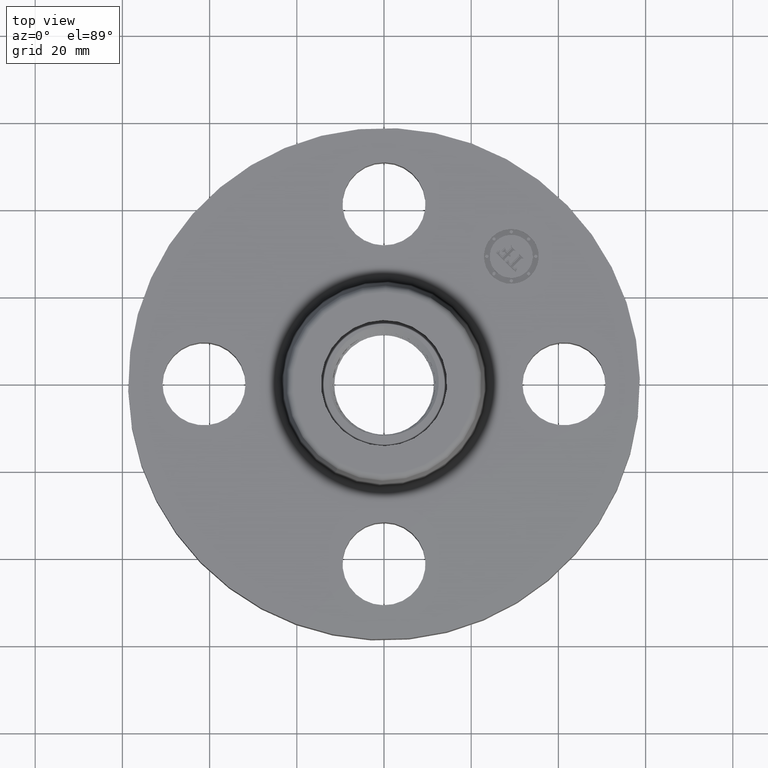
[diagram: clean part render]
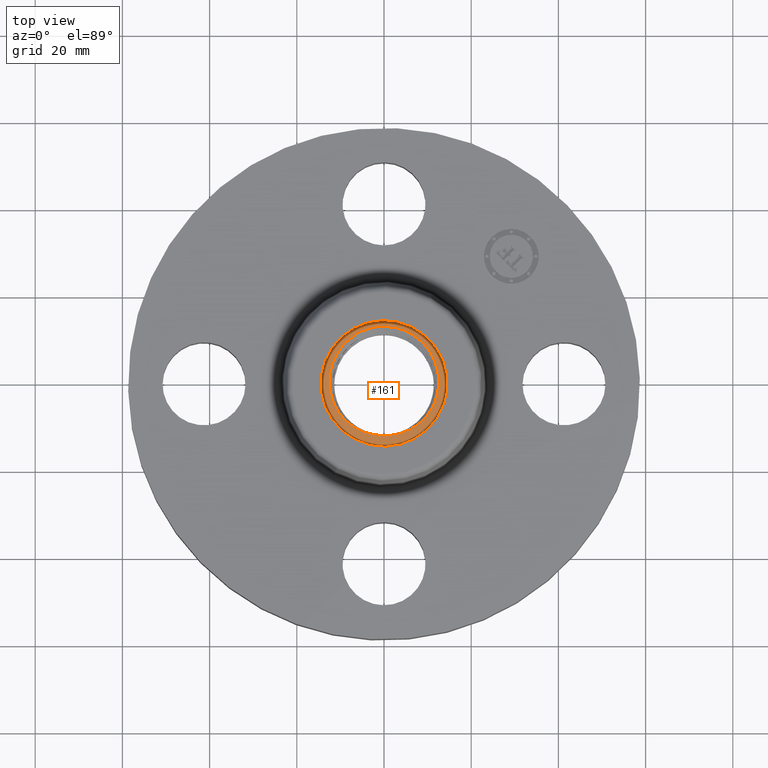
[diagram: same view with one face highlighted and labeled with its STEP entity id]
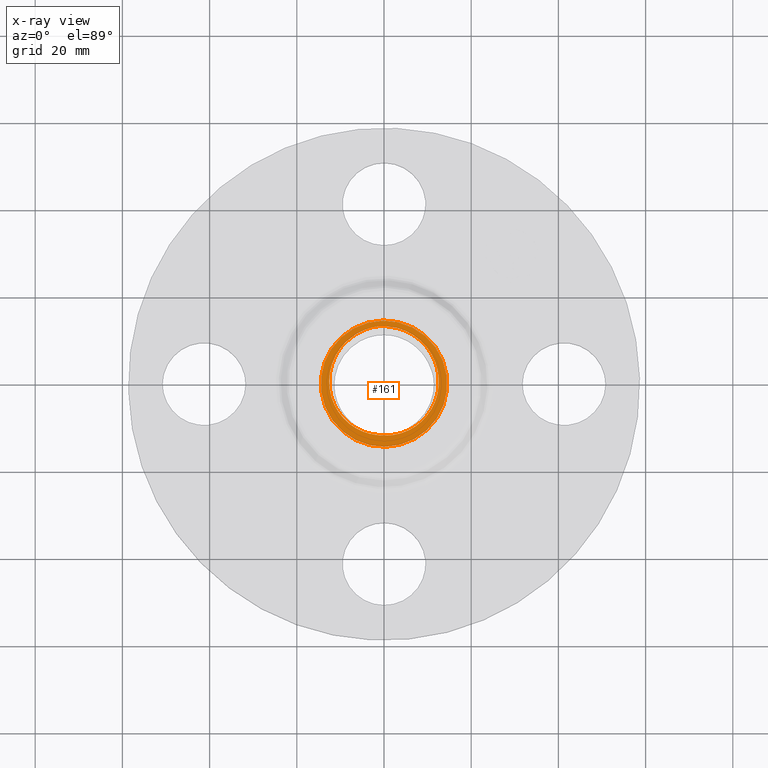
[diagram: x-ray of the same camera — body ghosted, the highlighted face saturated]
A machine part, top view. The second image highlights one B-rep face of the part: STEP entity #161.
The next image is the same camera in x-ray: the body ghosted, the highlighted face saturated — about 0% of this face is hidden behind the body in this view.
In plain terms, the highlighted planar face has unit normal (0, 0, 1).
Its self-contained STEP definition (entity closure, byte-faithful):
#38=AXIS2_PLACEMENT_3D('Plane Axis2P3D',#35,#36,#37) ;
#42=AXIS2_PLACEMENT_3D('Circle Axis2P3D',#40,#41,$) ;
#51=AXIS2_PLACEMENT_3D('Circle Axis2P3D',#49,#50,$) ;
#60=AXIS2_PLACEMENT_3D('Circle Axis2P3D',#58,#59,$) ;
#35=CARTESIAN_POINT('Axis2P3D Location',(1.92322098754E-017,-2.08057543197E-016,0.620000000002)) ;
#40=CARTESIAN_POINT('Axis2P3D Location',(0.,0.,0.620000000002)) ;
#44=CARTESIAN_POINT('Vertex',(-0.273272557005,0.50022206028,0.620000000002)) ;
#46=CARTESIAN_POINT('Vertex',(0.273272557005,-0.50022206028,0.620000000002)) ;
#49=CARTESIAN_POINT('Axis2P3D Location',(0.,0.,0.620000000002)) ;
#58=CARTESIAN_POINT('Axis2P3D Location',(1.92322098754E-017,1.92322098754E-017,0.620000000002)) ;
#62=CARTESIAN_POINT('Vertex',(-0.0688399554037,-0.462087093387,0.620000369459)) ;
#64=CARTESIAN_POINT('Vertex',(-0.000898155746527,-0.467185819808,0.619999533057)) ;
#68=CARTESIAN_POINT('Control Point',(-0.246874648732,0.451904577731,0.620000000002)) ;
#69=CARTESIAN_POINT('Control Point',(-0.286886767345,0.428073839848,0.620000000002)) ;
#70=CARTESIAN_POINT('Control Point',(-0.324120655207,0.399765657591,0.620000000002)) ;
#71=CARTESIAN_POINT('Control Point',(-0.357892663513,0.367403255664,0.620000000002)) ;
#72=CARTESIAN_POINT('Control Point',(-0.417367407322,0.295716882227,0.620000000002)) ;
#73=CARTESIAN_POINT('Control Point',(-0.458982025395,0.212846321883,0.620000000002)) ;
#74=CARTESIAN_POINT('Control Point',(-0.47490507491,0.169278463983,0.620000000002)) ;
#75=CARTESIAN_POINT('Control Point',(-0.494276151142,0.0884506146587,0.620000000002)) ;
#76=CARTESIAN_POINT('Control Point',(-0.496660780172,0.00587605778858,0.620000000002)) ;
#77=CARTESIAN_POINT('Control Point',(-0.494322375469,-0.0307556926294,0.620000000002)) ;
#78=CARTESIAN_POINT('Control Point',(-0.481489083588,-0.112076150774,0.620000000002)) ;
#79=CARTESIAN_POINT('Control Point',(-0.452185521533,-0.188866355639,0.620000000002)) ;
#80=CARTESIAN_POINT('Control Point',(-0.431040425404,-0.229332544678,0.620000000002)) ;
#81=CARTESIAN_POINT('Control Point',(-0.379827310801,-0.304424622314,0.620000000002)) ;
#82=CARTESIAN_POINT('Control Point',(-0.313003531468,-0.36536066358,0.620000000002)) ;
#83=CARTESIAN_POINT('Control Point',(-0.27622328463,-0.39169519428,0.620000000002)) ;
#84=CARTESIAN_POINT('Control Point',(-0.213555465979,-0.426195274949,0.620000000002)) ;
#85=CARTESIAN_POINT('Control Point',(-0.14613285147,-0.448271854112,0.620000000002)) ;
#86=CARTESIAN_POINT('Control Point',(-0.120639769476,-0.454688686443,0.620000000002)) ;
#87=CARTESIAN_POINT('Control Point',(-0.0948185026009,-0.459298429926,0.620000000002)) ;
#88=CARTESIAN_POINT('Control Point',(-0.0688398611782,-0.462086550419,0.620000000002)) ;
#89=CARTESIAN_POINT('Vertex',(-0.246874648732,0.451904577731,0.620000000002)) ;
#93=CARTESIAN_POINT('Control Point',(-0.0410005323526,0.521404259615,0.620000000002)) ;
#94=CARTESIAN_POINT('Control Point',(-0.084654212127,0.516358284317,0.620000000002)) ;
#95=CARTESIAN_POINT('Control Point',(-0.127698108692,0.506733078077,0.620000000002)) ;
#96=CARTESIAN_POINT('Control Point',(-0.169496926035,0.492611963322,0.620000000002)) ;
#97=CARTESIAN_POINT('Control Point',(-0.209404094776,0.474221590148,0.620000000002)) ;
#98=CARTESIAN_POINT('Control Point',(-0.246874648732,0.451904577731,0.620000000002)) ;
#99=CARTESIAN_POINT('Vertex',(-0.0410005323527,0.521404259615,0.620000000002)) ;
#103=CARTESIAN_POINT('Control Point',(-0.0410005323527,0.521404259615,0.620000000002)) ;
#104=CARTESIAN_POINT('Control Point',(-0.0328023643171,0.521776412308,0.620000000002)) ;
#105=CARTESIAN_POINT('Control Point',(-0.0245994034175,0.52198754736,0.620000000002)) ;
#106=CARTESIAN_POINT('Control Point',(-0.0163903047175,0.522037517069,0.620000000002)) ;
#107=CARTESIAN_POINT('Control Point',(-0.0081903946225,0.521926288257,0.620000000002)) ;
#108=CARTESIAN_POINT('Control Point',(1.69015948654E-006,0.521654154517,0.620000000002)) ;
#109=CARTESIAN_POINT('Vertex',(1.69015948651E-006,0.521654154517,0.620000000002)) ;
#113=CARTESIAN_POINT('Control Point',(1.69015948663E-006,0.521654154517,0.620000000002)) ;
#114=CARTESIAN_POINT('Control Point',(0.0468492643059,0.520097920058,0.620000000002)) ;
#115=CARTESIAN_POINT('Control Point',(0.0934409487528,0.513279597337,0.620000000002)) ;
#116=CARTESIAN_POINT('Control Point',(0.138979567143,0.501235788448,0.620000000002)) ;
#117=CARTESIAN_POINT('Control Point',(0.226384867942,0.467142182791,0.620000000002)) ;
#118=CARTESIAN_POINT('Control Point',(0.303661737705,0.414564697999,0.620000000002)) ;
#119=CARTESIAN_POINT('Control Point',(0.339076607765,0.384031921659,0.620000000002)) ;
#120=CARTESIAN_POINT('Control Point',(0.402203711557,0.31559074832,0.620000000002)) ;
#121=CARTESIAN_POINT('Control Point',(0.448124592946,0.234963263188,0.620000000002)) ;
#122=CARTESIAN_POINT('Control Point',(0.466316103117,0.192262738497,0.620000000002)) ;
#123=CARTESIAN_POINT('Control Point',(0.492522393644,0.103625938095,0.620000000002)) ;
#124=CARTESIAN_POINT('Control Point',(0.497890259074,0.0117178835026,0.620000000002)) ;
#125=CARTESIAN_POINT('Control Point',(0.49523854238,-0.0342394954873,0.620000000002)) ;
#126=CARTESIAN_POINT('Control Point',(0.479396383889,-0.12452384699,0.620000000002)) ;
#127=CARTESIAN_POINT('Control Point',(0.443463959793,-0.208436497813,0.620000000002)) ;
#128=CARTESIAN_POINT('Control Point',(0.420716046485,-0.248034006748,0.620000000002)) ;
#129=CARTESIAN_POINT('Control Point',(0.373273048861,-0.311953335752,0.620000000002)) ;
#130=CARTESIAN_POINT('Control Point',(0.314242613476,-0.364604472245,0.620000000002)) ;
#131=CARTESIAN_POINT('Control Point',(0.287038829997,-0.384861123352,0.620000000002)) ;
#132=CARTESIAN_POINT('Control Point',(0.258233665217,-0.402586685907,0.620000000002)) ;
#133=CARTESIAN_POINT('Control Point',(0.228147865563,-0.417627779028,0.620000000002)) ;
#134=CARTESIAN_POINT('Vertex',(0.228147865563,-0.417627779028,0.620000000002)) ;
#138=CARTESIAN_POINT('Control Point',(0.228147865563,-0.417627779028,0.620000000002)) ;
#139=CARTESIAN_POINT('Control Point',(0.185747224164,-0.438825553372,0.620000000002)) ;
#140=CARTESIAN_POINT('Control Point',(0.140802943244,-0.454691512187,0.620000000002)) ;
#141=CARTESIAN_POINT('Control Point',(0.0941831886575,-0.464804903909,0.620000000002)) ;
#142=CARTESIAN_POINT('Control Point',(0.0469240759851,-0.468959844063,0.620000000002)) ;
#143=CARTESIAN_POINT('Control Point',(-3.33307480746E-006,-0.467219173195,0.620000000002)) ;
#144=CARTESIAN_POINT('Vertex',(-3.33402645061E-006,-0.467187363299,0.620021298331)) ;
#147=CARTESIAN_POINT('Line Origine',(-0.00045074645902,-0.467185893751,0.620000000002)) ;
#36=DIRECTION('Axis2P3D Direction',(0.,0.,0.0393700787402)) ;
#37=DIRECTION('Axis2P3D XDirection',(0.0393700787402,0.,0.)) ;
#41=DIRECTION('Axis2P3D Direction',(0.,0.,0.0393700787402)) ;
#50=DIRECTION('Axis2P3D Direction',(0.,0.,0.0393700787402)) ;
#59=DIRECTION('Axis2P3D Direction',(0.,0.,0.0393700787402)) ;
#148=DIRECTION('Vector Direction',(-0.0393700201699,6.79104142859E-005,0.)) ;
#149=VECTOR('Line Direction',#148,0.0393700787402) ;
#55=ORIENTED_EDGE('',*,*,#48,.T.) ;
#56=ORIENTED_EDGE('',*,*,#53,.T.) ;
#153=ORIENTED_EDGE('',*,*,#66,.F.) ;
#154=ORIENTED_EDGE('',*,*,#91,.F.) ;
#155=ORIENTED_EDGE('',*,*,#101,.F.) ;
#156=ORIENTED_EDGE('',*,*,#111,.T.) ;
#157=ORIENTED_EDGE('',*,*,#136,.T.) ;
#158=ORIENTED_EDGE('',*,*,#146,.T.) ;
#159=ORIENTED_EDGE('',*,*,#151,.F.) ;
#160=FACE_BOUND('',#152,.T.) ;
#161=ADVANCED_FACE('PartBody',(#57,#160),#39,.T.) ;
#67=B_SPLINE_CURVE_WITH_KNOTS('',5,(#68,#69,#70,#71,#72,#73,#74,#75,#76,#77,#78,#79,#80,#81,#82,#83,#84,#85,#86,#87,#88),.UNSPECIFIED.,.F.,.U.,(6,3,3,3,3,3,6),(0.,8.21005073165,16.42432981,22.9948618412,31.2076121682,39.4271441926,44.2701779381),.UNSPECIFIED.) ;
#92=B_SPLINE_CURVE_WITH_KNOTS('',5,(#93,#94,#95,#96,#97,#98),.UNSPECIFIED.,.F.,.U.,(6,6),(0.,7.68854935521),.UNSPECIFIED.) ;
#102=B_SPLINE_CURVE_WITH_KNOTS('',5,(#103,#104,#105,#106,#107,#108),.UNSPECIFIED.,.F.,.U.,(6,6),(0.,1.4357924464),.UNSPECIFIED.) ;
#112=B_SPLINE_CURVE_WITH_KNOTS('',5,(#113,#114,#115,#116,#117,#118,#119,#120,#121,#122,#123,#124,#125,#126,#127,#128,#129,#130,#131,#132,#133),.UNSPECIFIED.,.F.,.U.,(6,3,3,3,3,3,6),(0.,8.21077843753,16.4225180697,24.6291604781,32.8327099086,41.0385398923,47.1994583512),.UNSPECIFIED.) ;
#137=B_SPLINE_CURVE_WITH_KNOTS('',5,(#138,#139,#140,#141,#142,#143),.UNSPECIFIED.,.F.,.U.,(6,6),(0.,8.68273062398),.UNSPECIFIED.) ;
#43=CIRCLE('generated circle',#42,0.570000000002) ;
#52=CIRCLE('generated circle',#51,0.570000000002) ;
#61=CIRCLE('generated circle',#60,0.467186697742) ;
#48=EDGE_CURVE('',#45,#47,#43,.T.) ;
#53=EDGE_CURVE('',#47,#45,#52,.T.) ;
#66=EDGE_CURVE('',#63,#65,#61,.T.) ;
#91=EDGE_CURVE('',#90,#63,#67,.T.) ;
#101=EDGE_CURVE('',#100,#90,#92,.T.) ;
#111=EDGE_CURVE('',#100,#110,#102,.T.) ;
#136=EDGE_CURVE('',#110,#135,#112,.T.) ;
#146=EDGE_CURVE('',#135,#145,#137,.T.) ;
#151=EDGE_CURVE('',#65,#145,#150,.F.) ;
#54=EDGE_LOOP('',(#55,#56)) ;
#152=EDGE_LOOP('',(#153,#154,#155,#156,#157,#158,#159)) ;
#57=FACE_OUTER_BOUND('',#54,.T.) ;
#150=LINE('Line',#147,#149) ;
#39=PLANE('',#38) ;
#45=VERTEX_POINT('',#44) ;
#47=VERTEX_POINT('',#46) ;
#63=VERTEX_POINT('',#62) ;
#65=VERTEX_POINT('',#64) ;
#90=VERTEX_POINT('',#89) ;
#100=VERTEX_POINT('',#99) ;
#110=VERTEX_POINT('',#109) ;
#135=VERTEX_POINT('',#134) ;
#145=VERTEX_POINT('',#144) ;